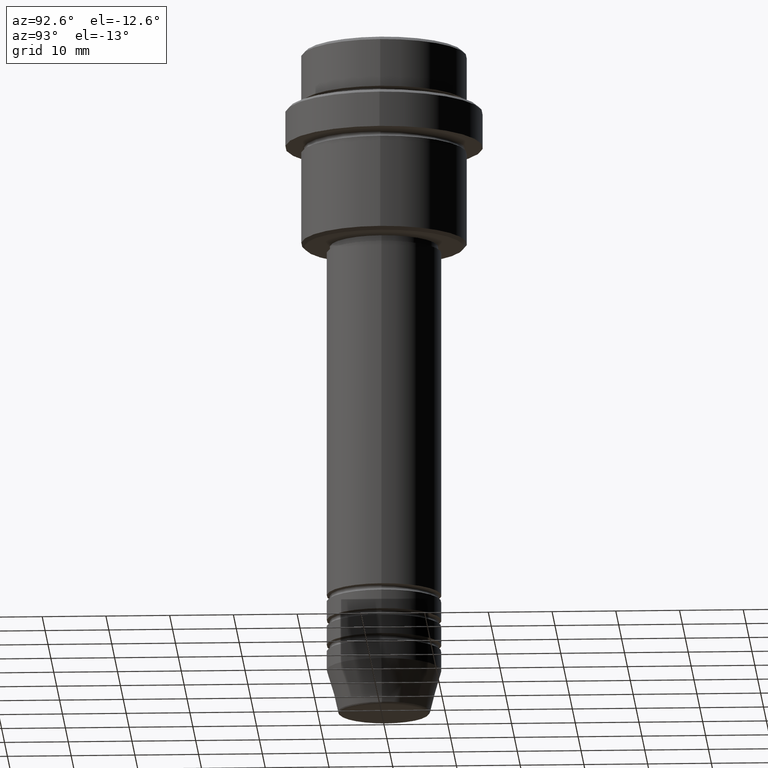
[diagram: clean part render]
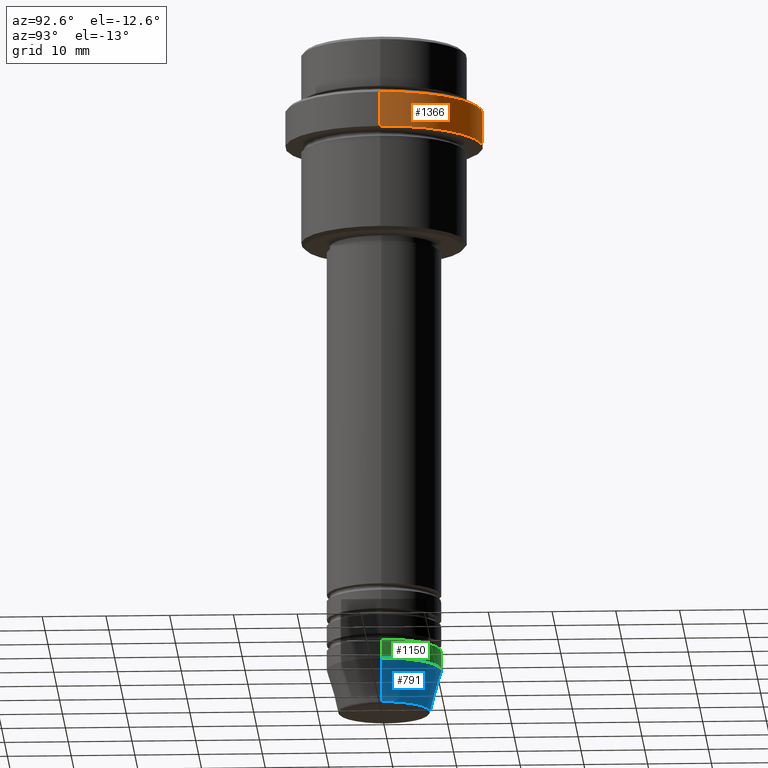
[diagram: same view with three faces highlighted in distinct colors, each labeled with its STEP entity id]
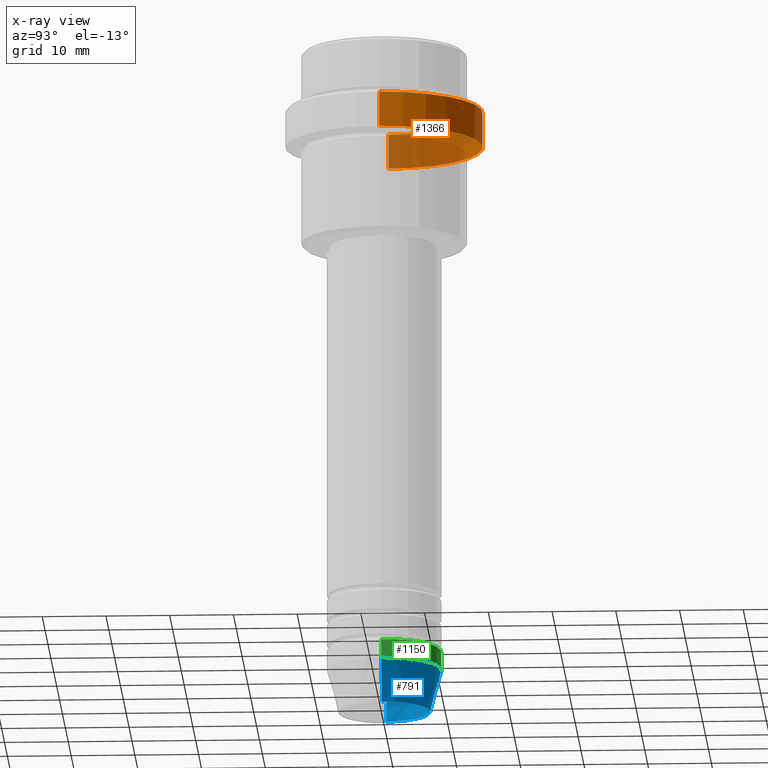
[diagram: x-ray of the same camera — body ghosted, the three highlighted faces saturated]
A machine part, auxiliary view with three faces highlighted in distinct colors.
The next image is the same camera in x-ray (body ghosted, the three faces saturated) — at least one of them is partly hidden behind the body in this view.
Their STEP definitions:

[orange] entity #1366 — the highlighted cylindrical surface (partial cylindrical patch) has radius 15.5 mm, axis along (-0, -0, 1).
#59 = CARTESIAN_POINT ( 'NONE',  ( -15.50000000000000000, 1.898202538678397557E-15, 0.000000000000000000 ) ) ;
#110 = DIRECTION ( 'NONE',  ( -0.000000000000000000, -0.000000000000000000, 1.000000000000000000 ) ) ;
#152 = DIRECTION ( 'NONE',  ( -0.000000000000000000, -0.000000000000000000, 1.000000000000000000 ) ) ;
#157 = ORIENTED_EDGE ( 'NONE', *, *, #587, .T. ) ;
#181 = LINE ( 'NONE', #59, #965 ) ;
#184 = CARTESIAN_POINT ( 'NONE',  ( -15.50000000000000000, 1.898202538678397557E-15, -15.00000000000000178 ) ) ;
#203 = FACE_OUTER_BOUND ( 'NONE', #764, .T. ) ;
#222 = DIRECTION ( 'NONE',  ( 0.000000000000000000, 0.000000000000000000, -1.000000000000000000 ) ) ;
#258 = CARTESIAN_POINT ( 'NONE',  ( 0.000000000000000000, 0.000000000000000000, -15.00000000000000178 ) ) ;
#273 = VERTEX_POINT ( 'NONE', #1394 ) ;
#328 = VERTEX_POINT ( 'NONE', #717 ) ;
#329 = EDGE_CURVE ( 'NONE', #641, #273, #181, .T. ) ;
#388 = DIRECTION ( 'NONE',  ( -0.000000000000000000, -0.000000000000000000, 1.000000000000000000 ) ) ;
#427 = EDGE_CURVE ( 'NONE', #273, #630, #1315, .T. ) ;
#457 = DIRECTION ( 'NONE',  ( 1.000000000000000000, 0.000000000000000000, 0.000000000000000000 ) ) ;
#540 = CARTESIAN_POINT ( 'NONE',  ( 15.50000000000000000, 0.000000000000000000, 0.000000000000000000 ) ) ;
#543 = DIRECTION ( 'NONE',  ( 1.000000000000000000, 0.000000000000000000, 0.000000000000000000 ) ) ;
#555 = DIRECTION ( 'NONE',  ( 1.000000000000000000, 0.000000000000000000, 0.000000000000000000 ) ) ;
#563 = ORIENTED_EDGE ( 'NONE', *, *, #329, .T. ) ;
#576 = VECTOR ( 'NONE', #1212, 1000.000000000000000 ) ;
#587 = EDGE_CURVE ( 'NONE', #328, #641, #1107, .T. ) ;
#630 = VERTEX_POINT ( 'NONE', #1258 ) ;
#641 = VERTEX_POINT ( 'NONE', #184 ) ;
#717 = CARTESIAN_POINT ( 'NONE',  ( 15.50000000000000000, 0.000000000000000000, -15.00000000000000178 ) ) ;
#757 = AXIS2_PLACEMENT_3D ( 'NONE', #258, #152, #457 ) ;
#764 = EDGE_LOOP ( 'NONE', ( #157, #563, #837, #799 ) ) ;
#799 = ORIENTED_EDGE ( 'NONE', *, *, #922, .F. ) ;
#810 = AXIS2_PLACEMENT_3D ( 'NONE', #1098, #110, #543 ) ;
#837 = ORIENTED_EDGE ( 'NONE', *, *, #427, .T. ) ;
#922 = EDGE_CURVE ( 'NONE', #328, #630, #1200, .T. ) ;
#965 = VECTOR ( 'NONE', #388, 1000.000000000000000 ) ;
#1098 = CARTESIAN_POINT ( 'NONE',  ( 0.000000000000000000, 0.000000000000000000, 0.000000000000000000 ) ) ;
#1104 = CYLINDRICAL_SURFACE ( 'NONE', #810, 15.50000000000000000 ) ;
#1107 = CIRCLE ( 'NONE', #757, 15.50000000000000000 ) ;
#1124 = AXIS2_PLACEMENT_3D ( 'NONE', #1304, #222, #555 ) ;
#1200 = LINE ( 'NONE', #540, #576 ) ;
#1212 = DIRECTION ( 'NONE',  ( -0.000000000000000000, -0.000000000000000000, 1.000000000000000000 ) ) ;
#1258 = CARTESIAN_POINT ( 'NONE',  ( 15.50000000000000000, 0.000000000000000000, -9.500000000000040856 ) ) ;
#1304 = CARTESIAN_POINT ( 'NONE',  ( 0.000000000000000000, 0.000000000000000000, -9.500000000000040856 ) ) ;
#1315 = CIRCLE ( 'NONE', #1124, 15.50000000000000000 ) ;
#1366 = ADVANCED_FACE ( 'NONE', ( #203 ), #1104, .T. ) ;
#1394 = CARTESIAN_POINT ( 'NONE',  ( -15.50000000000000000, 1.898202538678397557E-15, -9.500000000000040856 ) ) ;

[blue] entity #791 — the highlighted conical surface has half-angle 15 deg.
#4 = CIRCLE ( 'NONE', #235, 7.223655072137197486 ) ;
#15 = CARTESIAN_POINT ( 'NONE',  ( -9.000000000000000000, 1.102182119232617714E-15, -99.00000000000000000 ) ) ;
#19 = LINE ( 'NONE', #15, #594 ) ;
#29 = VERTEX_POINT ( 'NONE', #346 ) ;
#42 = CARTESIAN_POINT ( 'NONE',  ( -9.000000000000000000, 1.102182119232617714E-15, -99.00000000000000000 ) ) ;
#45 = DIRECTION ( 'NONE',  ( 1.000000000000000000, 0.000000000000000000, 0.000000000000000000 ) ) ;
#85 = EDGE_CURVE ( 'NONE', #399, #1077, #19, .T. ) ;
#88 = DIRECTION ( 'NONE',  ( 0.2588190451025213501, 0.000000000000000000, 0.9659258262890680902 ) ) ;
#142 = AXIS2_PLACEMENT_3D ( 'NONE', #178, #611, #1387 ) ;
#178 = CARTESIAN_POINT ( 'NONE',  ( 0.000000000000000000, 0.000000000000000000, -99.00000000000000000 ) ) ;
#235 = AXIS2_PLACEMENT_3D ( 'NONE', #1139, #590, #45 ) ;
#278 = VECTOR ( 'NONE', #88, 1000.000000000000000 ) ;
#318 = DIRECTION ( 'NONE',  ( -0.000000000000000000, -0.000000000000000000, 1.000000000000000000 ) ) ;
#346 = CARTESIAN_POINT ( 'NONE',  ( 9.000000000000000000, 0.000000000000000000, -99.00000000000000000 ) ) ;
#399 = VERTEX_POINT ( 'NONE', #675 ) ;
#409 = VERTEX_POINT ( 'NONE', #1411 ) ;
#452 = DIRECTION ( 'NONE',  ( -0.2588190451025213501, 3.169619151431772337E-17, 0.9659258262890680902 ) ) ;
#490 = EDGE_LOOP ( 'NONE', ( #913, #911, #927, #998 ) ) ;
#526 = DIRECTION ( 'NONE',  ( 1.000000000000000000, 0.000000000000000000, 0.000000000000000000 ) ) ;
#531 = CIRCLE ( 'NONE', #1272, 9.000000000000000000 ) ;
#590 = DIRECTION ( 'NONE',  ( -0.000000000000000000, -0.000000000000000000, 1.000000000000000000 ) ) ;
#594 = VECTOR ( 'NONE', #452, 1000.000000000000000 ) ;
#611 = DIRECTION ( 'NONE',  ( -0.000000000000000000, -0.000000000000000000, 1.000000000000000000 ) ) ;
#633 = LINE ( 'NONE', #648, #278 ) ;
#635 = EDGE_CURVE ( 'NONE', #409, #399, #4, .T. ) ;
#648 = CARTESIAN_POINT ( 'NONE',  ( 9.000000000000000000, 0.000000000000000000, -99.00000000000000000 ) ) ;
#675 = CARTESIAN_POINT ( 'NONE',  ( -7.223655072137198374, 9.934123627281771026E-16, -105.6294095225512422 ) ) ;
#760 = CONICAL_SURFACE ( 'NONE', #142, 9.000000000000000000, 0.2617993877991500740 ) ;
#791 = ADVANCED_FACE ( 'NONE', ( #1163 ), #760, .T. ) ;
#839 = EDGE_CURVE ( 'NONE', #29, #1077, #531, .T. ) ;
#840 = EDGE_CURVE ( 'NONE', #409, #29, #633, .T. ) ;
#911 = ORIENTED_EDGE ( 'NONE', *, *, #85, .T. ) ;
#913 = ORIENTED_EDGE ( 'NONE', *, *, #635, .T. ) ;
#927 = ORIENTED_EDGE ( 'NONE', *, *, #839, .F. ) ;
#998 = ORIENTED_EDGE ( 'NONE', *, *, #840, .F. ) ;
#1077 = VERTEX_POINT ( 'NONE', #42 ) ;
#1139 = CARTESIAN_POINT ( 'NONE',  ( 0.000000000000000000, 0.000000000000000000, -105.6294095225512422 ) ) ;
#1163 = FACE_OUTER_BOUND ( 'NONE', #490, .T. ) ;
#1272 = AXIS2_PLACEMENT_3D ( 'NONE', #1301, #318, #526 ) ;
#1301 = CARTESIAN_POINT ( 'NONE',  ( 0.000000000000000000, 0.000000000000000000, -99.00000000000000000 ) ) ;
#1387 = DIRECTION ( 'NONE',  ( 1.000000000000000000, 0.000000000000000000, 0.000000000000000000 ) ) ;
#1411 = CARTESIAN_POINT ( 'NONE',  ( 7.223655072137197486, 0.000000000000000000, -105.6294095225512422 ) ) ;

[green] entity #1150 — the highlighted cylindrical surface (partial cylindrical patch) has radius 9 mm, axis along (-0, -0, 1).
#29 = VERTEX_POINT ( 'NONE', #346 ) ;
#41 = EDGE_LOOP ( 'NONE', ( #710, #129, #1155, #907 ) ) ;
#42 = CARTESIAN_POINT ( 'NONE',  ( -9.000000000000000000, 1.102182119232617714E-15, -99.00000000000000000 ) ) ;
#43 = AXIS2_PLACEMENT_3D ( 'NONE', #1097, #763, #1101 ) ;
#93 = EDGE_CURVE ( 'NONE', #307, #107, #459, .T. ) ;
#107 = VERTEX_POINT ( 'NONE', #978 ) ;
#129 = ORIENTED_EDGE ( 'NONE', *, *, #557, .T. ) ;
#141 = VECTOR ( 'NONE', #537, 1000.000000000000000 ) ;
#143 = CARTESIAN_POINT ( 'NONE',  ( -9.000000000000000000, 1.102182119232617714E-15, 0.000000000000000000 ) ) ;
#183 = FACE_OUTER_BOUND ( 'NONE', #41, .T. ) ;
#307 = VERTEX_POINT ( 'NONE', #1072 ) ;
#318 = DIRECTION ( 'NONE',  ( -0.000000000000000000, -0.000000000000000000, 1.000000000000000000 ) ) ;
#346 = CARTESIAN_POINT ( 'NONE',  ( 9.000000000000000000, 0.000000000000000000, -99.00000000000000000 ) ) ;
#405 = DIRECTION ( 'NONE',  ( -0.000000000000000000, -0.000000000000000000, 1.000000000000000000 ) ) ;
#459 = CIRCLE ( 'NONE', #43, 9.000000000000000000 ) ;
#470 = EDGE_CURVE ( 'NONE', #29, #307, #774, .T. ) ;
#526 = DIRECTION ( 'NONE',  ( 1.000000000000000000, 0.000000000000000000, 0.000000000000000000 ) ) ;
#531 = CIRCLE ( 'NONE', #1272, 9.000000000000000000 ) ;
#537 = DIRECTION ( 'NONE',  ( -0.000000000000000000, -0.000000000000000000, 1.000000000000000000 ) ) ;
#557 = EDGE_CURVE ( 'NONE', #1077, #107, #1339, .T. ) ;
#710 = ORIENTED_EDGE ( 'NONE', *, *, #839, .T. ) ;
#759 = CARTESIAN_POINT ( 'NONE',  ( 9.000000000000000000, 0.000000000000000000, 0.000000000000000000 ) ) ;
#763 = DIRECTION ( 'NONE',  ( -0.000000000000000000, -0.000000000000000000, 1.000000000000000000 ) ) ;
#774 = LINE ( 'NONE', #759, #141 ) ;
#817 = CYLINDRICAL_SURFACE ( 'NONE', #1153, 9.000000000000000000 ) ;
#839 = EDGE_CURVE ( 'NONE', #29, #1077, #531, .T. ) ;
#896 = DIRECTION ( 'NONE',  ( -0.000000000000000000, -0.000000000000000000, 1.000000000000000000 ) ) ;
#907 = ORIENTED_EDGE ( 'NONE', *, *, #470, .F. ) ;
#919 = VECTOR ( 'NONE', #896, 1000.000000000000000 ) ;
#956 = CARTESIAN_POINT ( 'NONE',  ( 0.000000000000000000, 0.000000000000000000, 0.000000000000000000 ) ) ;
#978 = CARTESIAN_POINT ( 'NONE',  ( -9.000000000000000000, 1.102182119232617714E-15, -96.00000000000000000 ) ) ;
#1053 = DIRECTION ( 'NONE',  ( 1.000000000000000000, 0.000000000000000000, 0.000000000000000000 ) ) ;
#1072 = CARTESIAN_POINT ( 'NONE',  ( 9.000000000000000000, 0.000000000000000000, -96.00000000000000000 ) ) ;
#1077 = VERTEX_POINT ( 'NONE', #42 ) ;
#1097 = CARTESIAN_POINT ( 'NONE',  ( 0.000000000000000000, 0.000000000000000000, -96.00000000000000000 ) ) ;
#1101 = DIRECTION ( 'NONE',  ( 1.000000000000000000, 0.000000000000000000, 0.000000000000000000 ) ) ;
#1150 = ADVANCED_FACE ( 'NONE', ( #183 ), #817, .T. ) ;
#1153 = AXIS2_PLACEMENT_3D ( 'NONE', #956, #405, #1053 ) ;
#1155 = ORIENTED_EDGE ( 'NONE', *, *, #93, .F. ) ;
#1272 = AXIS2_PLACEMENT_3D ( 'NONE', #1301, #318, #526 ) ;
#1301 = CARTESIAN_POINT ( 'NONE',  ( 0.000000000000000000, 0.000000000000000000, -99.00000000000000000 ) ) ;
#1339 = LINE ( 'NONE', #143, #919 ) ;